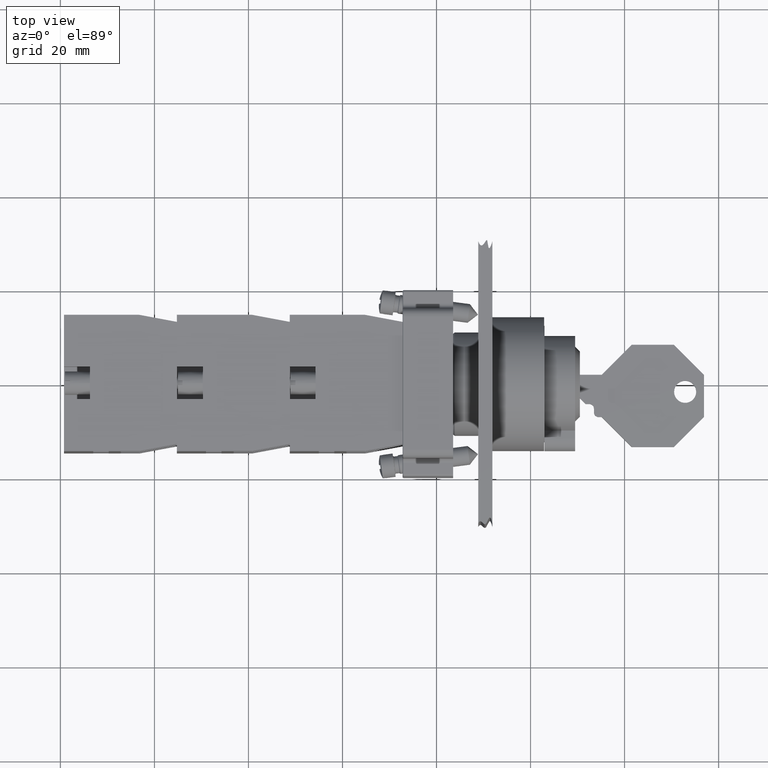
[diagram: clean part render]
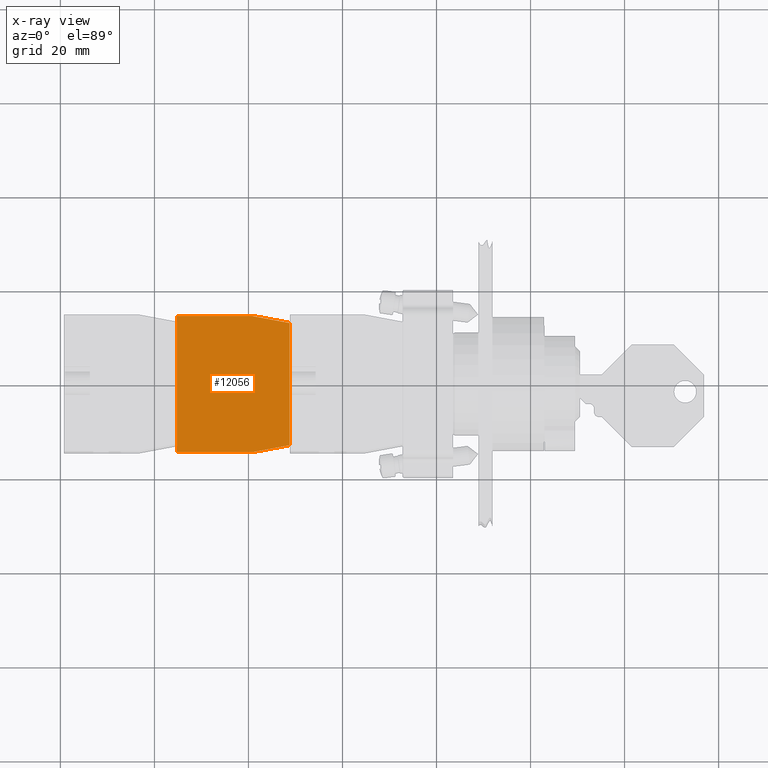
[diagram: x-ray — body ghosted, one internal face saturated and labeled with its STEP entity id]
A machine part, top view, then the same camera in x-ray: the body is ghosted and one INTERNAL B-rep face — a face not visible from any outside direction — is saturated and labeled: STEP entity #12056.
In plain terms, the highlighted planar face has unit normal (-0, -0, 1).
Its self-contained STEP definition (entity closure, byte-faithful):
#10361=CARTESIAN_POINT('',(-44.936741828918471,23.797073323279623,0.0));
#10362=VERTEX_POINT('',#10361);
#10369=CARTESIAN_POINT('',(-44.936741828918457,7.797073323279626,0.0));
#10370=VERTEX_POINT('',#10369);
#10371=CARTESIAN_POINT('',(-44.936741828918457,7.797073323279626,0.0));
#10372=DIRECTION('',(0.0,1.0,0.0));
#10373=VECTOR('',#10372,15.999999999999996);
#10374=LINE('',#10371,#10373);
#10375=EDGE_CURVE('',#10370,#10362,#10374,.T.);
#10552=CARTESIAN_POINT('',(-43.436741828918457,-0.202926676720380,0.0));
#10553=VERTEX_POINT('',#10552);
#10560=CARTESIAN_POINT('',(-17.436741828918457,-0.202926676720377,0.0));
#10561=VERTEX_POINT('',#10560);
#10562=CARTESIAN_POINT('',(-17.436741828918457,-0.202926676720377,0.0));
#10563=DIRECTION('',(-1.0,0.0,0.0));
#10564=VECTOR('',#10563,26.0);
#10565=LINE('',#10562,#10564);
#10566=EDGE_CURVE('',#10561,#10553,#10565,.T.);
#11910=CARTESIAN_POINT('',(-15.936741828918466,23.797073323279626,0.0));
#11911=VERTEX_POINT('',#11910);
#11918=CARTESIAN_POINT('',(-44.936741828918471,23.797073323279623,0.0));
#11919=DIRECTION('',(1.0,0.0,0.0));
#11920=VECTOR('',#11919,29.000000000000007);
#11921=LINE('',#11918,#11920);
#11922=EDGE_CURVE('',#10362,#11911,#11921,.T.);
#11958=CARTESIAN_POINT('',(-15.936741828918466,7.797073323279626,0.0));
#11959=VERTEX_POINT('',#11958);
#11966=CARTESIAN_POINT('',(-15.936741828918466,23.797073323279626,0.0));
#11967=DIRECTION('',(0.0,-1.0,0.0));
#11968=VECTOR('',#11967,16.0);
#11969=LINE('',#11966,#11968);
#11970=EDGE_CURVE('',#11911,#11959,#11969,.T.);
#11998=CARTESIAN_POINT('',(-15.936741828918466,7.797073323279626,0.0));
#11999=DIRECTION('',(-0.184288535050184,-0.982872186934322,0.0));
#12000=VECTOR('',#11999,8.139410298049855);
#12001=LINE('',#11998,#12000);
#12002=EDGE_CURVE('',#11959,#10561,#12001,.T.);
#12015=CARTESIAN_POINT('',(-43.436741828918457,-0.202926676720380,0.0));
#12016=DIRECTION('',(-0.184288535050185,0.982872186934322,0.0));
#12017=VECTOR('',#12016,8.139410298049860);
#12018=LINE('',#12015,#12017);
#12019=EDGE_CURVE('',#10553,#10370,#12018,.T.);
#12043=CARTESIAN_POINT('',(-30.436741828918464,12.124046801833057,0.0));
#12044=DIRECTION('',(0.0,0.0,1.0));
#12045=DIRECTION('',(1.0,0.0,0.0));
#12046=AXIS2_PLACEMENT_3D('',#12043,#12044,#12045);
#12047=PLANE('',#12046);
#12048=ORIENTED_EDGE('',*,*,#11922,.T.);
#12049=ORIENTED_EDGE('',*,*,#11970,.T.);
#12050=ORIENTED_EDGE('',*,*,#12002,.T.);
#12051=ORIENTED_EDGE('',*,*,#10566,.T.);
#12052=ORIENTED_EDGE('',*,*,#12019,.T.);
#12053=ORIENTED_EDGE('',*,*,#10375,.T.);
#12054=EDGE_LOOP('',(#12048,#12049,#12050,#12051,#12052,#12053));
#12055=FACE_OUTER_BOUND('',#12054,.T.);
#12056=ADVANCED_FACE('',(#12055),#12047,.F.);